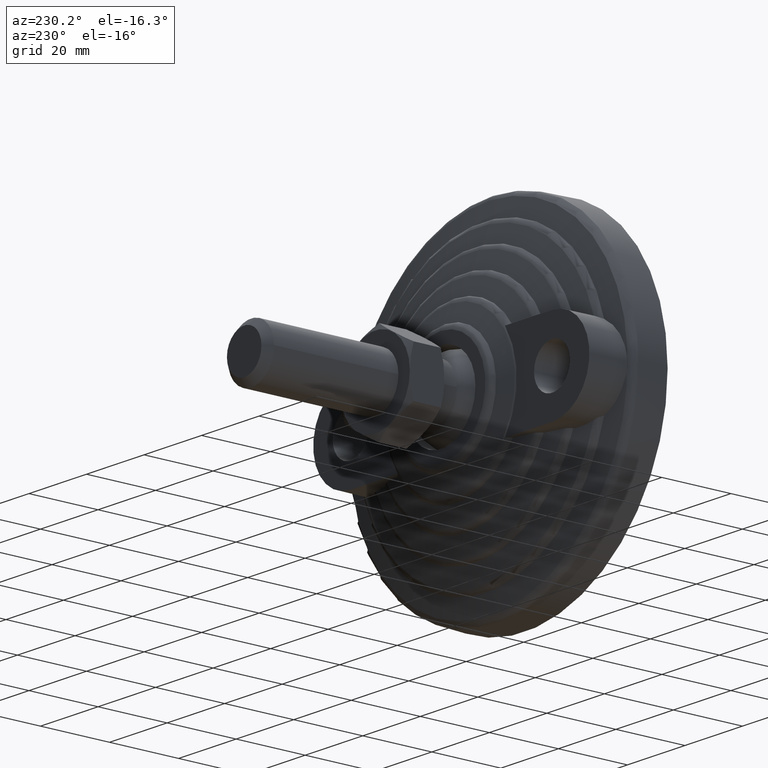
[diagram: clean part render]
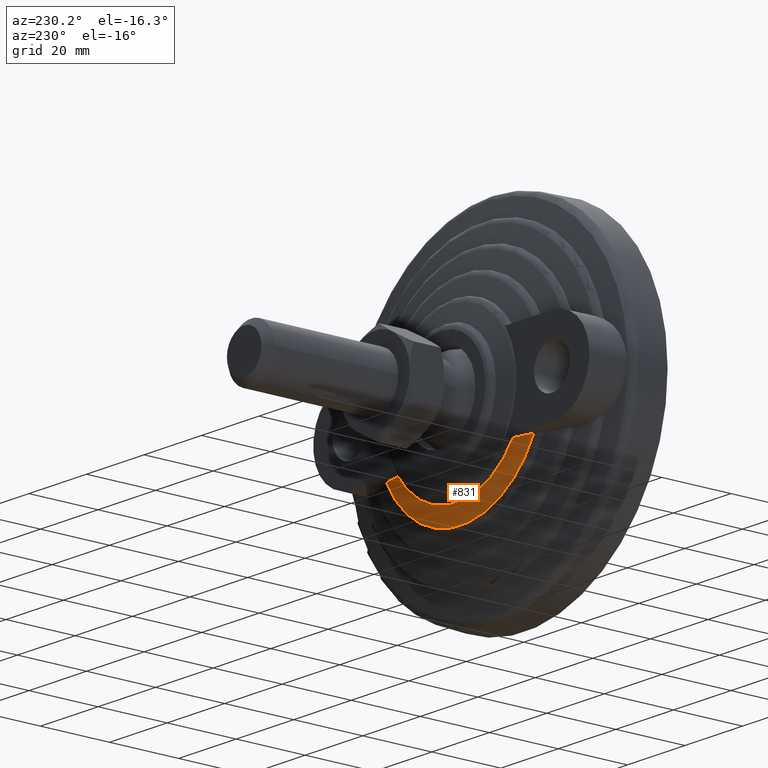
[diagram: same view with one face highlighted and labeled with its STEP entity id]
A machine part, auxiliary view. The second image highlights one B-rep face of the part: STEP entity #831.
In plain terms, the highlighted conical surface has half-angle 75.718 deg.
Its self-contained STEP definition (entity closure, byte-faithful):
#36=(
BOUNDED_CURVE()
B_SPLINE_CURVE(2,(#1591,#1592,#1593),.UNSPECIFIED.,.F.,.F.)
B_SPLINE_CURVE_WITH_KNOTS((3,3),(0.,5.88535965437154),.UNSPECIFIED.)
CURVE()
GEOMETRIC_REPRESENTATION_ITEM()
RATIONAL_B_SPLINE_CURVE((1.,1.00605980664525,1.))
REPRESENTATION_ITEM('')
);
#44=(
BOUNDED_CURVE()
B_SPLINE_CURVE(2,(#1629,#1630,#1631),.UNSPECIFIED.,.F.,.F.)
B_SPLINE_CURVE_WITH_KNOTS((3,3),(0.,5.88535965437154),.UNSPECIFIED.)
CURVE()
GEOMETRIC_REPRESENTATION_ITEM()
RATIONAL_B_SPLINE_CURVE((1.,1.00605980664525,1.))
REPRESENTATION_ITEM('')
);
#150=FACE_OUTER_BOUND('',#199,.T.);
#199=EDGE_LOOP('',(#707,#708,#709,#710));
#286=CIRCLE('',#935,28.7110977150605);
#292=CIRCLE('',#943,23.7299800032368);
#338=VERTEX_POINT('',#1333);
#339=VERTEX_POINT('',#1334);
#350=VERTEX_POINT('',#1401);
#351=VERTEX_POINT('',#1410);
#430=EDGE_CURVE('',#338,#339,#286,.T.);
#442=EDGE_CURVE('',#351,#350,#292,.T.);
#480=EDGE_CURVE('',#350,#339,#36,.T.);
#495=EDGE_CURVE('',#338,#351,#44,.T.);
#707=ORIENTED_EDGE('',*,*,#495,.T.);
#708=ORIENTED_EDGE('',*,*,#442,.T.);
#709=ORIENTED_EDGE('',*,*,#480,.T.);
#710=ORIENTED_EDGE('',*,*,#430,.F.);
#798=CONICAL_SURFACE('',#984,26.2205388591486,1.32152659744419);
#831=ADVANCED_FACE('',(#150),#798,.T.);
#935=AXIS2_PLACEMENT_3D('',#1335,#1062,#1063);
#943=AXIS2_PLACEMENT_3D('',#1411,#1078,#1079);
#984=AXIS2_PLACEMENT_3D('',#1658,#1171,#1172);
#1062=DIRECTION('center_axis',(0.,-1.,0.));
#1063=DIRECTION('ref_axis',(-1.,0.,0.));
#1078=DIRECTION('center_axis',(0.,-1.,0.));
#1079=DIRECTION('ref_axis',(-1.,0.,0.));
#1171=DIRECTION('center_axis',(0.,-1.,0.));
#1172=DIRECTION('ref_axis',(-1.,0.,0.));
#1333=CARTESIAN_POINT('',(-25.5993580388991,18.4157909338136,-13.));
#1334=CARTESIAN_POINT('',(25.5993580388991,18.4157909338136,-13.));
#1335=CARTESIAN_POINT('Origin',(0.,18.4157909338136,0.));
#1401=CARTESIAN_POINT('',(19.852253044781,19.6838050904597,-13.));
#1410=CARTESIAN_POINT('',(-19.852253044781,19.6838050904597,-13.));
#1411=CARTESIAN_POINT('Origin',(0.,19.6838050904597,0.));
#1591=CARTESIAN_POINT('Ctrl Pts',(19.852253044781,19.6838050904597,-13.));
#1592=CARTESIAN_POINT('Ctrl Pts',(22.4528610513453,19.1299647028047,-13.));
#1593=CARTESIAN_POINT('Ctrl Pts',(25.5993580388992,18.4157909338136,-13.));
#1629=CARTESIAN_POINT('Ctrl Pts',(-25.5993580388992,18.4157909338136,-13.));
#1630=CARTESIAN_POINT('Ctrl Pts',(-22.4528610513453,19.1299647028047,-13.));
#1631=CARTESIAN_POINT('Ctrl Pts',(-19.852253044781,19.6838050904597,-13.));
#1658=CARTESIAN_POINT('Origin',(0.,19.0497980121366,0.));